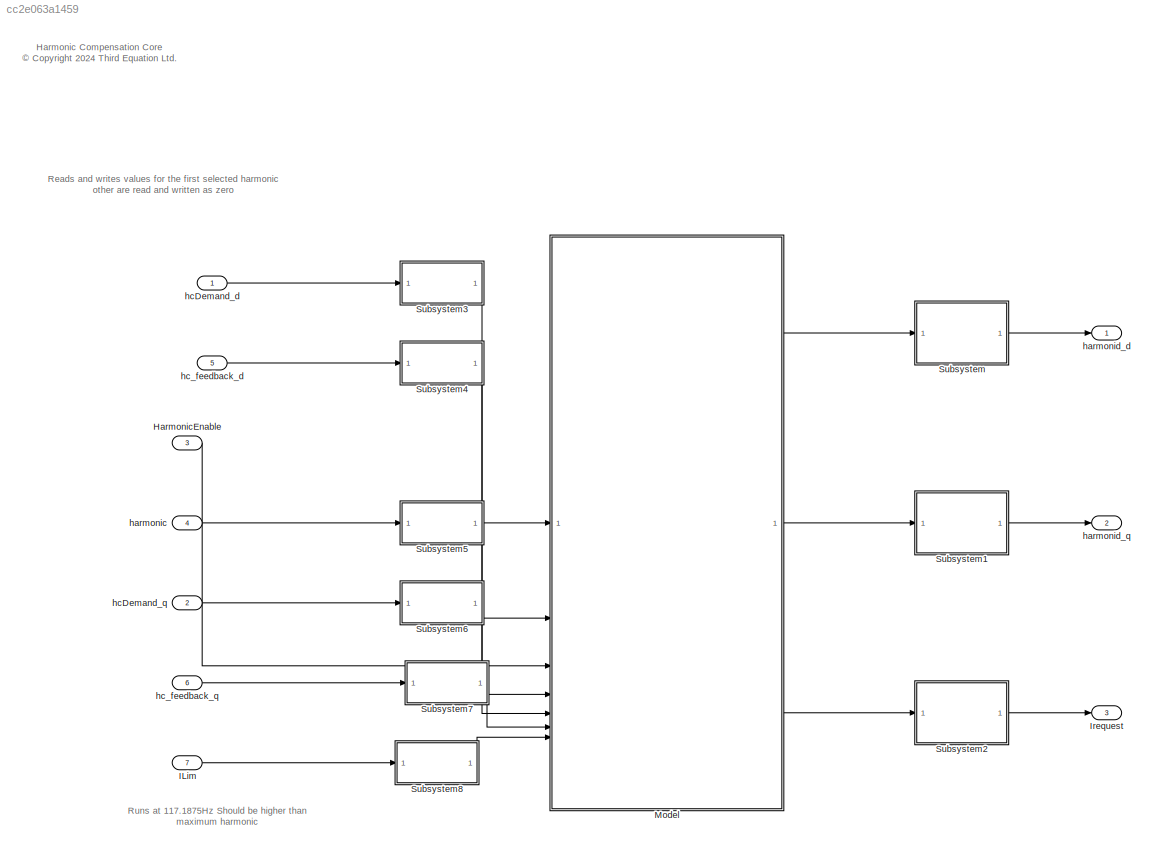
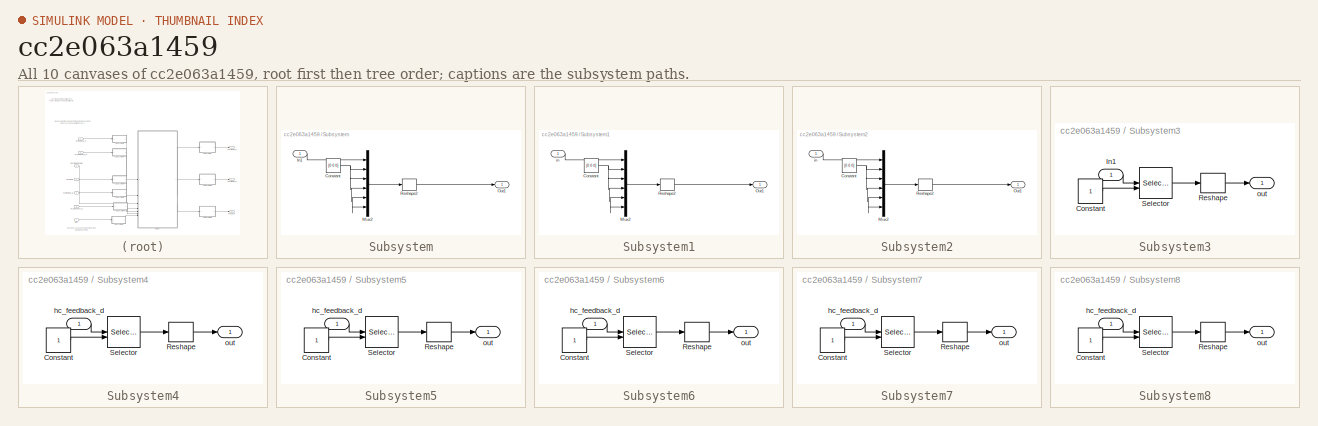
[diagram: thumbnail index - all 10 canvases of the model, root first then tree order]
MODEL slx_cc2e063a1459
KIND model
BLOCK [Inport] HarmonicEnable
  OutDataTypeStr = boolean
  Port = 3
  PortDimensions = 1
BLOCK [Inport] ILim
  OutDataTypeStr = single
  Port = 7
  PortDimensions = [3 shuntNumHarmonics]
BLOCK [Outport] Irequest
  OutDataTypeStr = single
  Port = 3
  PortDimensions = [3 shuntNumHarmonics]
BLOCK [ModelReference] Model
  ModelNameDialog = HC_core_compensation.slx
  ModelReferenceVersion = 1.32
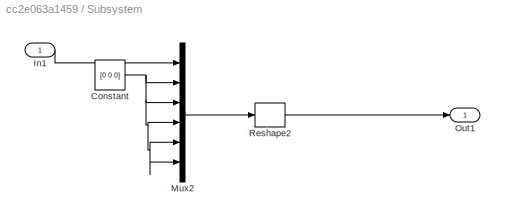
BLOCK [SubSystem] Subsystem
BLOCK [Constant] Subsystem/Constant
  OutDataTypeStr = single
  Value = [0 0 0]
BLOCK [Inport] Subsystem/In1
BLOCK [Mux] Subsystem/Mux2
  DisplayOption = bar
  Inputs = 6
BLOCK [Outport] Subsystem/Out1
BLOCK [Reshape] Subsystem/Reshape2
  OutputDimensionality = Customize
  OutputDimensions = [3,6]
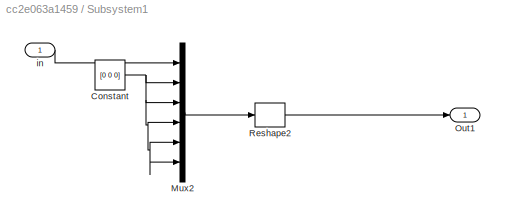
BLOCK [SubSystem] Subsystem1
BLOCK [Constant] Subsystem1/Constant
  OutDataTypeStr = single
  Value = [0 0 0]
BLOCK [Mux] Subsystem1/Mux2
  DisplayOption = bar
  Inputs = 6
BLOCK [Outport] Subsystem1/Out1
BLOCK [Reshape] Subsystem1/Reshape2
  OutputDimensionality = Customize
  OutputDimensions = [3,6]
BLOCK [Inport] Subsystem1/in
BLOCK [SubSystem] Subsystem2
BLOCK [Constant] Subsystem2/Constant
  OutDataTypeStr = single
  Value = [0 0 0]
BLOCK [Mux] Subsystem2/Mux2
  DisplayOption = bar
  Inputs = 6
BLOCK [Outport] Subsystem2/Out1
BLOCK [Reshape] Subsystem2/Reshape2
  OutputDimensionality = Customize
  OutputDimensions = [3,6]
BLOCK [Inport] Subsystem2/in
BLOCK [SubSystem] Subsystem3
BLOCK [Constant] Subsystem3/Constant
BLOCK [Inport] Subsystem3/In1
BLOCK [Reshape] Subsystem3/Reshape
BLOCK [Selector] Subsystem3/Selector
  IndexOptions = Select all,Index vector (port)
  Indices = [1 3],1
  InputPortWidth = 1
  NumberOfDimensions = 2
  OutputSizes = 1,1
BLOCK [Outport] Subsystem3/out
BLOCK [SubSystem] Subsystem4
BLOCK [Constant] Subsystem4/Constant
BLOCK [Reshape] Subsystem4/Reshape
BLOCK [Selector] Subsystem4/Selector
  IndexOptions = Select all,Index vector (port)
  Indices = [1 3],1
  InputPortWidth = 1
  NumberOfDimensions = 2
  OutputSizes = 1,1
BLOCK [Inport] Subsystem4/hc_feedback_d
BLOCK [Outport] Subsystem4/out
BLOCK [SubSystem] Subsystem5
BLOCK [Constant] Subsystem5/Constant
BLOCK [Reshape] Subsystem5/Reshape
BLOCK [Selector] Subsystem5/Selector
  IndexOptions = Select all,Index vector (port)
  Indices = [1 3],1
  InputPortWidth = 1
  NumberOfDimensions = 2
  OutputSizes = 1,1
BLOCK [Inport] Subsystem5/hc_feedback_d
BLOCK [Outport] Subsystem5/out
BLOCK [SubSystem] Subsystem6
BLOCK [Constant] Subsystem6/Constant
BLOCK [Reshape] Subsystem6/Reshape
BLOCK [Selector] Subsystem6/Selector
  IndexOptions = Select all,Index vector (port)
  Indices = [1 3],1
  InputPortWidth = 1
  NumberOfDimensions = 2
  OutputSizes = 1,1
BLOCK [Inport] Subsystem6/hc_feedback_d
BLOCK [Outport] Subsystem6/out
BLOCK [SubSystem] Subsystem7
BLOCK [Constant] Subsystem7/Constant
BLOCK [Reshape] Subsystem7/Reshape
BLOCK [Selector] Subsystem7/Selector
  IndexOptions = Select all,Index vector (port)
  Indices = [1 3],1
  InputPortWidth = 1
  NumberOfDimensions = 2
  OutputSizes = 1,1
BLOCK [Inport] Subsystem7/hc_feedback_d
BLOCK [Outport] Subsystem7/out
BLOCK [SubSystem] Subsystem8
BLOCK [Constant] Subsystem8/Constant
BLOCK [Reshape] Subsystem8/Reshape
BLOCK [Selector] Subsystem8/Selector
  IndexOptions = Select all,Index vector (port)
  Indices = [1 3],1
  InputPortWidth = 1
  NumberOfDimensions = 2
  OutputSizes = 1,1
BLOCK [Inport] Subsystem8/hc_feedback_d
BLOCK [Outport] Subsystem8/out
BLOCK [Inport] harmonic
  OutDataTypeStr = single
  Port = 4
  PortDimensions = shuntNumHarmonics
BLOCK [Outport] harmonid_d
  OutDataTypeStr = single
  PortDimensions = [3 shuntNumHarmonics]
BLOCK [Outport] harmonid_q
  OutDataTypeStr = single
  Port = 2
  PortDimensions = [3 shuntNumHarmonics]
BLOCK [Inport] hcDemand_d
  OutDataTypeStr = single
  PortDimensions = [3 shuntNumHarmonics]
BLOCK [Inport] hcDemand_q
  OutDataTypeStr = single
  Port = 2
  PortDimensions = [3 shuntNumHarmonics]
BLOCK [Inport] hc_feedback_d
  OutDataTypeStr = single
  Port = 5
  PortDimensions = [3 shuntNumHarmonics]
BLOCK [Inport] hc_feedback_q
  OutDataTypeStr = single
  Port = 6
  PortDimensions = [3 shuntNumHarmonics]
ANNOTATION (root): Harmonic Compensation Core <copyright redacted>
ANNOTATION (root): Reads and writes values for the first selected harmonic other are read and written as zero
ANNOTATION (root): Runs at 117.1875Hz Should be higher than maximum harmonic
LINE HarmonicEnable:1 -> Model:3
LINE ILim:1 -> Subsystem8:1
LINE Model:1 -> Subsystem:1
LINE Model:2 -> Subsystem1:1
LINE Model:3 -> Subsystem2:1
NET Subsystem/Constant:1 -> Subsystem/Mux2:2, Subsystem/Mux2:3, Subsystem/Mux2:4, Subsystem/Mux2:5, Subsystem/Mux2:6
LINE Subsystem/In1:1 -> Subsystem/Mux2:1
LINE Subsystem/Mux2:1 -> Subsystem/Reshape2:1
LINE Subsystem/Reshape2:1 -> Subsystem/Out1:1
NET Subsystem1/Constant:1 -> Subsystem1/Mux2:2, Subsystem1/Mux2:3, Subsystem1/Mux2:4, Subsystem1/Mux2:5, Subsystem1/Mux2:6
LINE Subsystem1/Mux2:1 -> Subsystem1/Reshape2:1
LINE Subsystem1/Reshape2:1 -> Subsystem1/Out1:1
LINE Subsystem1/in:1 -> Subsystem1/Mux2:1
LINE Subsystem1:1 -> harmonid_q:1
NET Subsystem2/Constant:1 -> Subsystem2/Mux2:2, Subsystem2/Mux2:3, Subsystem2/Mux2:4, Subsystem2/Mux2:5, Subsystem2/Mux2:6
LINE Subsystem2/Mux2:1 -> Subsystem2/Reshape2:1
LINE Subsystem2/Reshape2:1 -> Subsystem2/Out1:1
LINE Subsystem2/in:1 -> Subsystem2/Mux2:1
LINE Subsystem2:1 -> Irequest:1
LINE Subsystem3/Constant:1 -> Subsystem3/Selector:2
LINE Subsystem3/In1:1 -> Subsystem3/Selector:1
LINE Subsystem3/Reshape:1 -> Subsystem3/out:1
LINE Subsystem3/Selector:1 -> Subsystem3/Reshape:1
LINE Subsystem3:1 -> Model:1
LINE Subsystem4/Constant:1 -> Subsystem4/Selector:2
LINE Subsystem4/Reshape:1 -> Subsystem4/out:1
LINE Subsystem4/Selector:1 -> Subsystem4/Reshape:1
LINE Subsystem4/hc_feedback_d:1 -> Subsystem4/Selector:1
LINE Subsystem4:1 -> Model:2
LINE Subsystem5/Constant:1 -> Subsystem5/Selector:2
LINE Subsystem5/Reshape:1 -> Subsystem5/out:1
LINE Subsystem5/Selector:1 -> Subsystem5/Reshape:1
LINE Subsystem5/hc_feedback_d:1 -> Subsystem5/Selector:1
LINE Subsystem5:1 -> Model:4
LINE Subsystem6/Constant:1 -> Subsystem6/Selector:2
LINE Subsystem6/Reshape:1 -> Subsystem6/out:1
LINE Subsystem6/Selector:1 -> Subsystem6/Reshape:1
LINE Subsystem6/hc_feedback_d:1 -> Subsystem6/Selector:1
LINE Subsystem6:1 -> Model:5
LINE Subsystem7/Constant:1 -> Subsystem7/Selector:2
LINE Subsystem7/Reshape:1 -> Subsystem7/out:1
LINE Subsystem7/Selector:1 -> Subsystem7/Reshape:1
LINE Subsystem7/hc_feedback_d:1 -> Subsystem7/Selector:1
LINE Subsystem7:1 -> Model:6
LINE Subsystem8/Constant:1 -> Subsystem8/Selector:2
LINE Subsystem8/Reshape:1 -> Subsystem8/out:1
LINE Subsystem8/Selector:1 -> Subsystem8/Reshape:1
LINE Subsystem8/hc_feedback_d:1 -> Subsystem8/Selector:1
LINE Subsystem8:1 -> Model:7
LINE Subsystem:1 -> harmonid_d:1
LINE harmonic:1 -> Subsystem5:1
LINE hcDemand_d:1 -> Subsystem3:1
LINE hcDemand_q:1 -> Subsystem6:1
LINE hc_feedback_d:1 -> Subsystem4:1
LINE hc_feedback_q:1 -> Subsystem7:1
note: NET lines group one-source signal fan-out (src -> all destinations, sorted); 1:1 wires keep LINE
